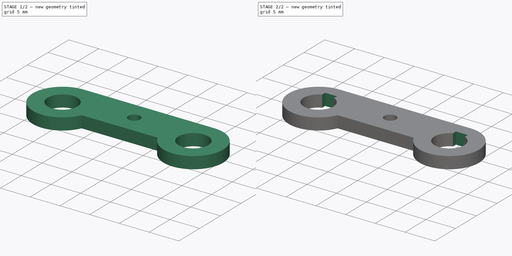
[diagram: build sequence overview — one tinted view per stage of 2, left to right]
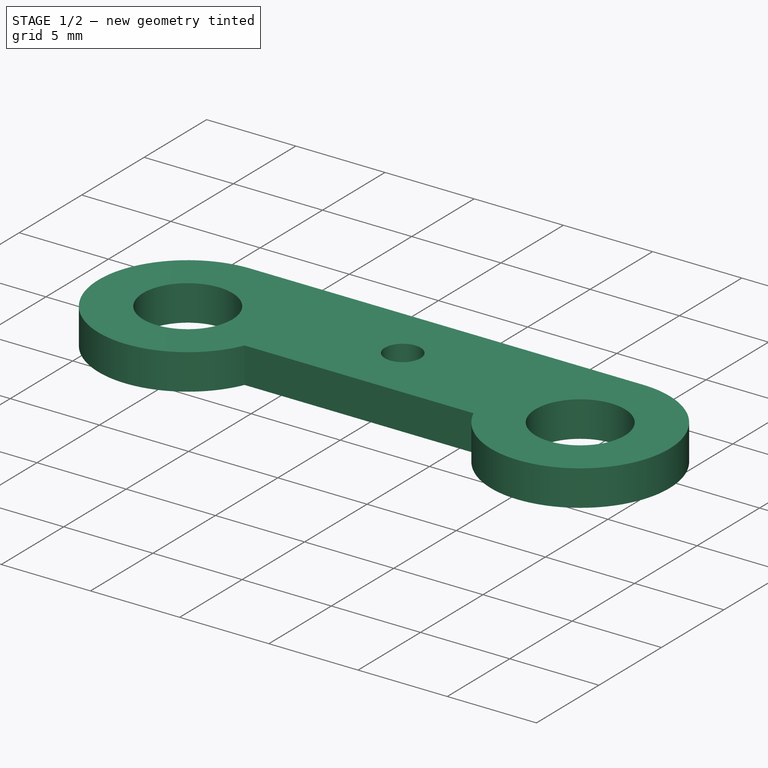
[diagram: stage 1 of 2 — iso view after this stage's code; geometry added in this stage tinted green]
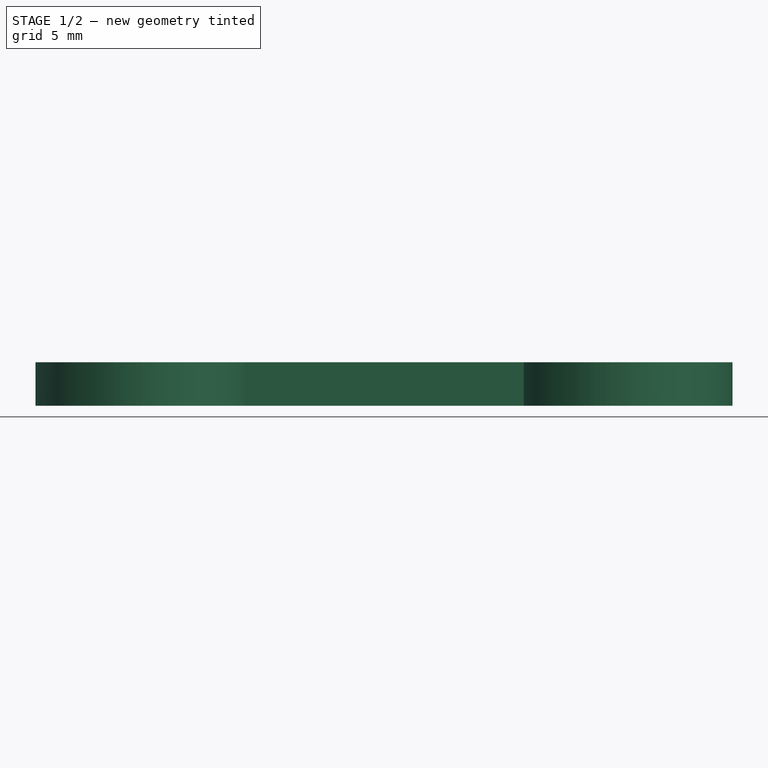
[diagram: stage 1 of 2 — front view after this stage's code; geometry added in this stage tinted green]
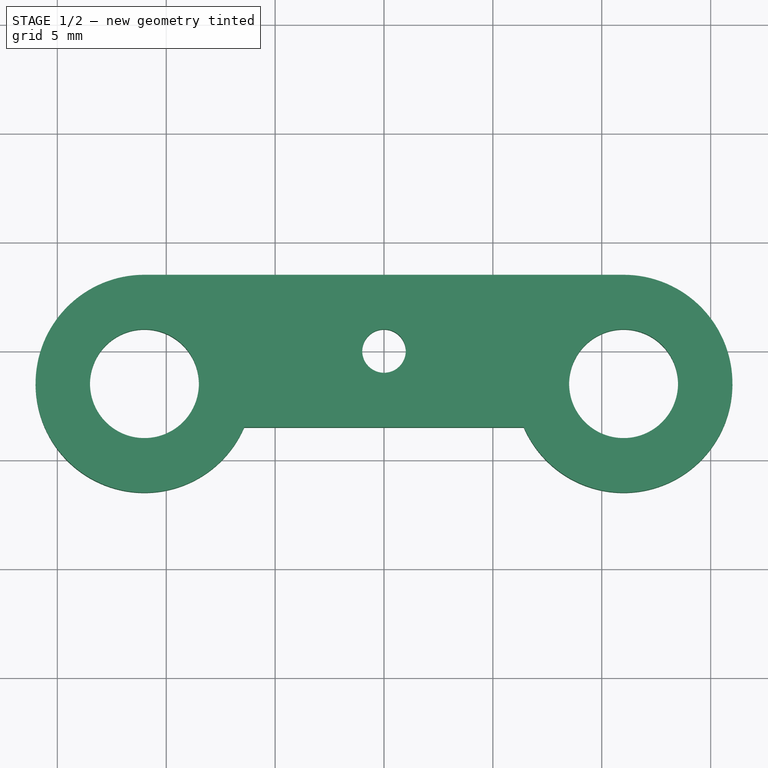
[diagram: stage 1 of 2 — top view after this stage's code; geometry added in this stage tinted green]
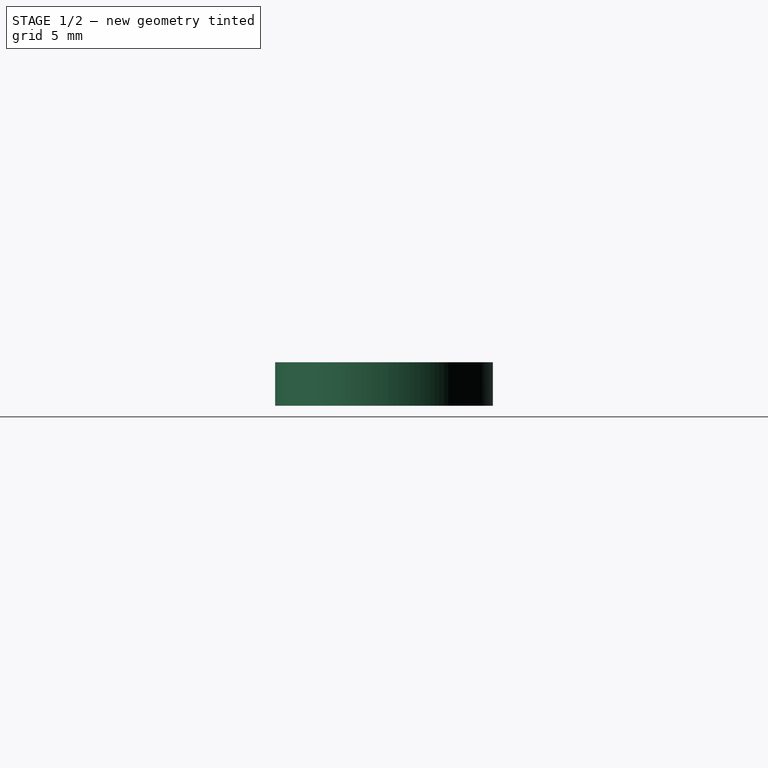
[diagram: stage 1 of 2 — right view after this stage's code; geometry added in this stage tinted green]
FCSTD DOCUMENT  (FreeCAD 0.15R4671 (Git))
Label: BarIndexMiddle
License: All rights reserved
LicenseURL: http://en.wikipedia.org/wiki/All_rights_reserved
objects: Sketcher::SketchObject×2, PartDesign::Pad×1, PartDesign::Pocket×1
note: 6 computed .brp shape members not serialized (recipe doc carries the construction recipe); baked Part::Feature solids carry a one-line shape summary decoded from their .brp

FEATURE [Sketcher::SketchObject] Sketch
  sketch-geometry (9):
    g0: Circle CenterX=0 CenterY=0 CenterZ=0 NormalX=0 NormalY=0 NormalZ=1 Radius=1
    g1: Circle CenterX=-11 CenterY=-1.5 CenterZ=0 NormalX=0 NormalY=0 NormalZ=1 Radius=2.5
    g2: Circle CenterX=11 CenterY=-1.5 CenterZ=0 NormalX=0 NormalY=0 NormalZ=1 Radius=2.5
    g3: LineSegment [constr] StartX=-11 StartY=1 StartZ=0 EndX=11 EndY=1 EndZ=0
    g4: LineSegment StartX=-11 StartY=3.5 StartZ=0 EndX=11 EndY=3.5 EndZ=0
    g5: LineSegment StartX=-6.41742 StartY=-3.5 StartZ=0 EndX=6.41742 EndY=-3.5 EndZ=0
    g6: LineSegment [constr] StartX=11 StartY=-1.5 StartZ=0 EndX=11 EndY=3.5 EndZ=0
    g7: ArcOfCircle CenterX=11 CenterY=-1.5 CenterZ=0 NormalX=0 NormalY=0 NormalZ=1 Radius=5 StartAngle=3.55311 EndAngle=7.85398
    g8: ArcOfCircle CenterX=-11 CenterY=-1.5 CenterZ=0 NormalX=0 NormalY=0 NormalZ=1 Radius=5 StartAngle=1.5708 EndAngle=5.87167
  constraints (24):
    c: Coincident(g0,g-1)
    c: Radius(g0) = 1
    c: Equal(g1,g2)
    c: Horizontal(g3)
    c: Tangent(g3,g0)
    c: Tangent(g1,g3)
    c: Radius(g1) = 2.5
    c: Symmetric(g1,g2,g-2)
    c: PointOnObject(g3,g2)
    c: DistanceX(g1,g2) = 22
    c: DistanceY(g-1,g5) = -3.5
    c: Symmetric(g5,g5,g-2)
    c: PointOnObject(g3,g1)
    c: Symmetric(g4,g4,g-2)
    c: DistanceY(g4,g5) = -7
    c: Coincident(g6,g2)
    c: Coincident(g6,g4)
    c: Vertical(g6)
    c: Coincident(g7,g2)
    c: Coincident(g7,g4)
    c: Coincident(g8,g1)
    c: Coincident(g8,g4)
    c: Coincident(g5,g8)
    c: Coincident(g5,g7)
FEATURE [PartDesign::Pad] Pad
  Length = 2
  Length2 = 100
  Sketch = -> Sketch
  Type = 0
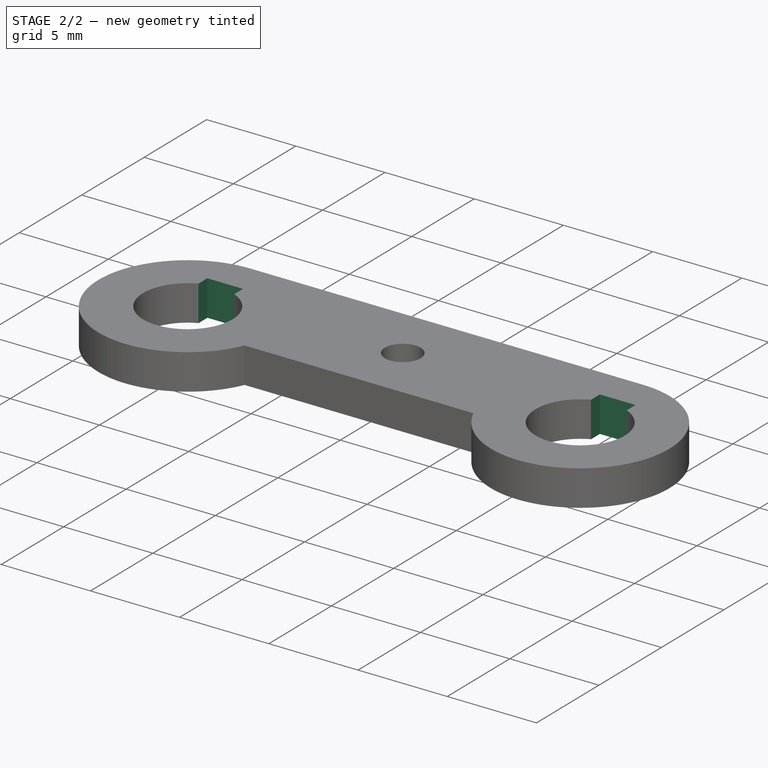
[diagram: stage 2 of 2 — iso view after this stage's code; geometry added in this stage tinted green]
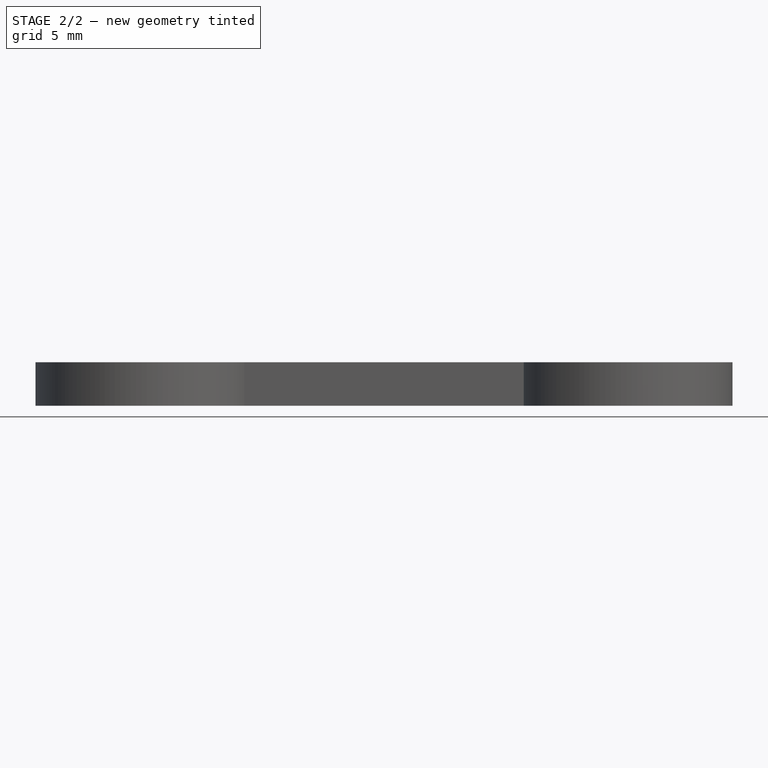
[diagram: stage 2 of 2 — front view after this stage's code; geometry added in this stage tinted green]
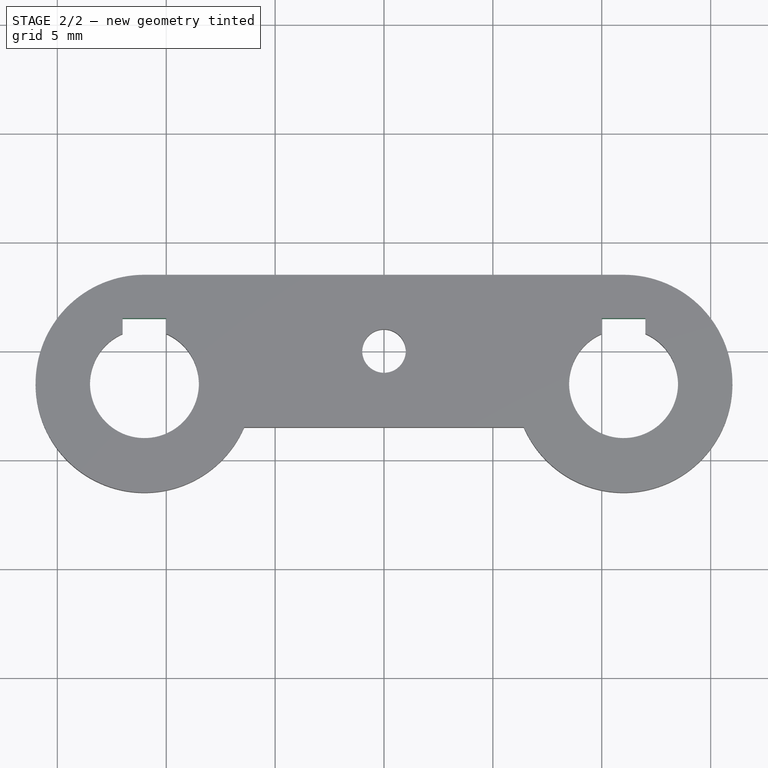
[diagram: stage 2 of 2 — top view after this stage's code; geometry added in this stage tinted green]
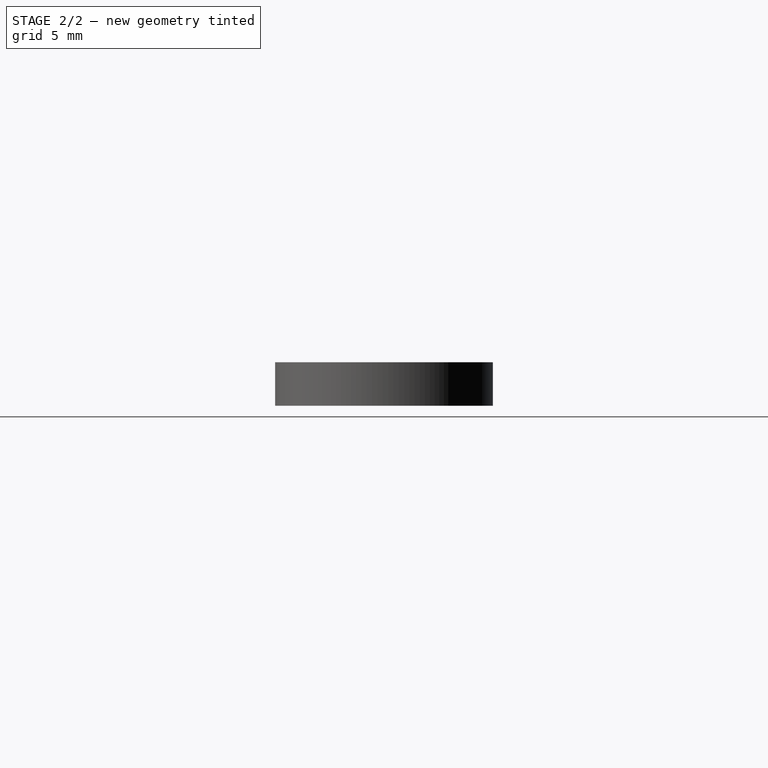
[diagram: stage 2 of 2 — right view after this stage's code; geometry added in this stage tinted green]
FEATURE [Sketcher::SketchObject] Sketch001
  ExternalGeometry = -> [Pad]
  Placement = pos=(0,0,2) rot=(0,0,1;0rad)
  Support = -> Pad [Face9]
  sketch-geometry (10):
    g0: LineSegment StartX=-12 StartY=1.5 StartZ=0 EndX=-10 EndY=1.5 EndZ=0
    g1: LineSegment StartX=-10 StartY=1.5 StartZ=0 EndX=-10 EndY=-0.5 EndZ=0
    g2: LineSegment StartX=-10 StartY=-0.5 StartZ=0 EndX=-12 EndY=-0.5 EndZ=0
    g3: LineSegment StartX=-12 StartY=-0.5 StartZ=0 EndX=-12 EndY=1.5 EndZ=0
    g4: LineSegment StartX=10 StartY=1.5 StartZ=0 EndX=12 EndY=1.5 EndZ=0
    g5: LineSegment StartX=12 StartY=1.5 StartZ=0 EndX=12 EndY=-0.5 EndZ=0
    g6: LineSegment StartX=12 StartY=-0.5 StartZ=0 EndX=10 EndY=-0.5 EndZ=0
    g7: LineSegment StartX=10 StartY=-0.5 StartZ=0 EndX=10 EndY=1.5 EndZ=0
    g8: LineSegment [constr] StartX=11 StartY=-1.5 StartZ=0 EndX=11 EndY=1 EndZ=0
    g9: LineSegment [constr] StartX=-11 StartY=-1.5 StartZ=0 EndX=-11 EndY=1 EndZ=0
  constraints (30):
    c: Coincident(g0,g1)
    c: Coincident(g1,g2)
    c: Coincident(g2,g3)
    c: Coincident(g3,g0)
    c: Horizontal(g0)
    c: Horizontal(g2)
    c: Vertical(g1)
    c: Vertical(g3)
    c: Coincident(g4,g5)
    c: Coincident(g5,g6)
    c: Coincident(g6,g7)
    c: Coincident(g7,g4)
    c: Horizontal(g4)
    c: Horizontal(g6)
    c: Vertical(g5)
    c: Vertical(g7)
    c: Coincident(g8,g-4)
    c: PointOnObject(g8,g-4)
    c: Vertical(g8)
    c: Coincident(g9,g-3)
    c: PointOnObject(g9,g-3)
    c: Vertical(g9)
    c: Symmetric(g2,g1,g9)
    c: Symmetric(g6,g5,g8)
    c: Equal(g3,g7)
    c: Equal(g4,g0)
    c: DistanceY(g8,g4) = 3
    c: DistanceY(g9,g0) = 3
    c: DistanceX(g0) = 2
    c: DistanceY(g1) = -2
FEATURE [PartDesign::Pocket] Pocket
  Length = 5
  Sketch = -> Sketch001
  Type = 1
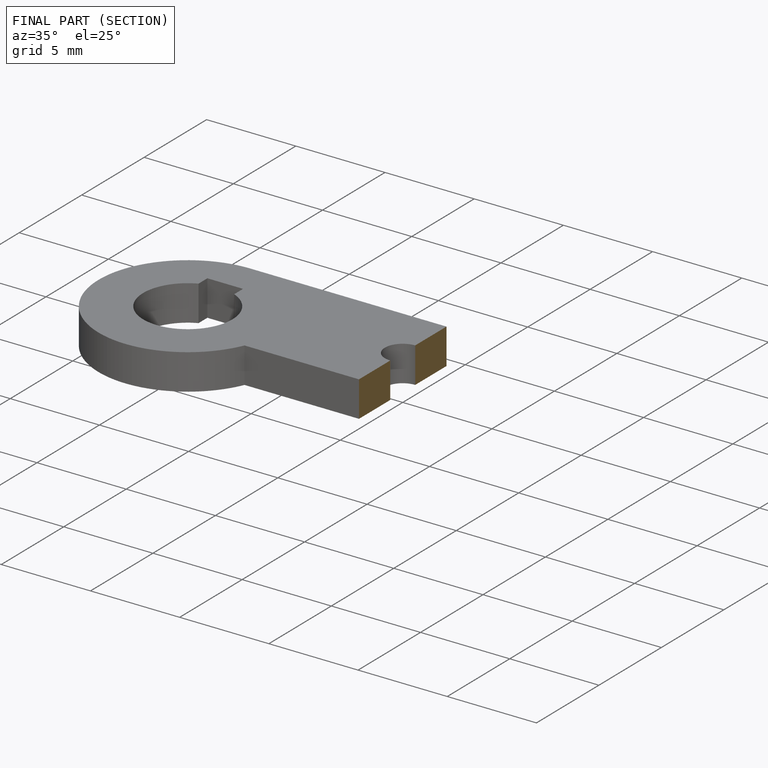
[diagram: finished part — half-section view (interior)]
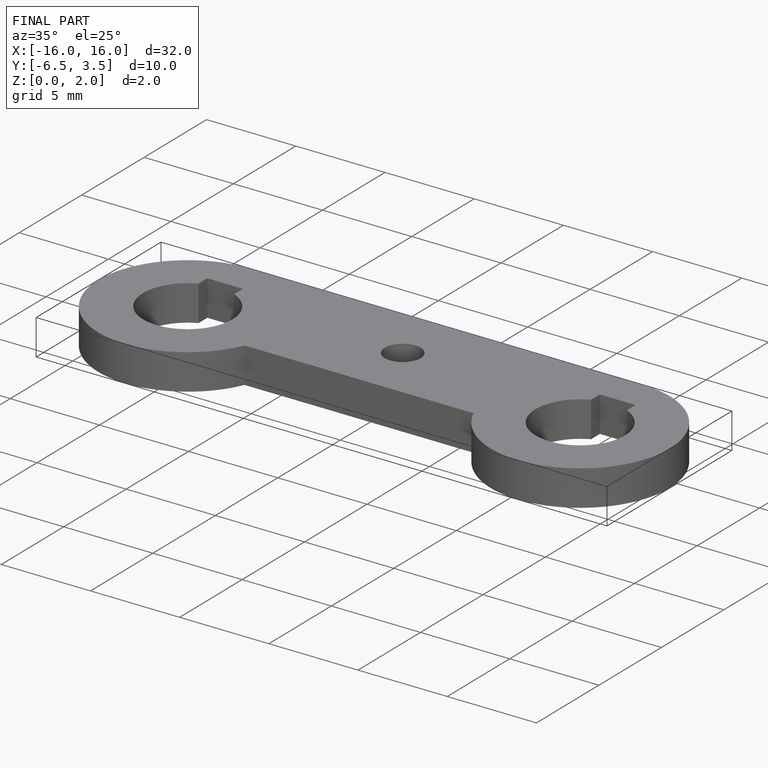
[diagram: finished part — iso view with bounding-box wireframe]
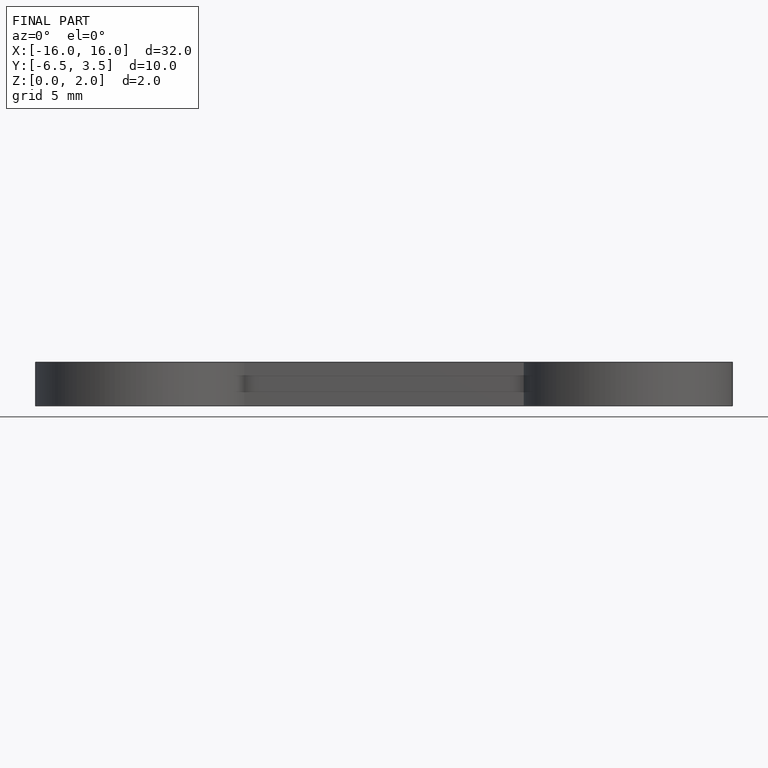
[diagram: finished part — front view with bounding-box wireframe]
